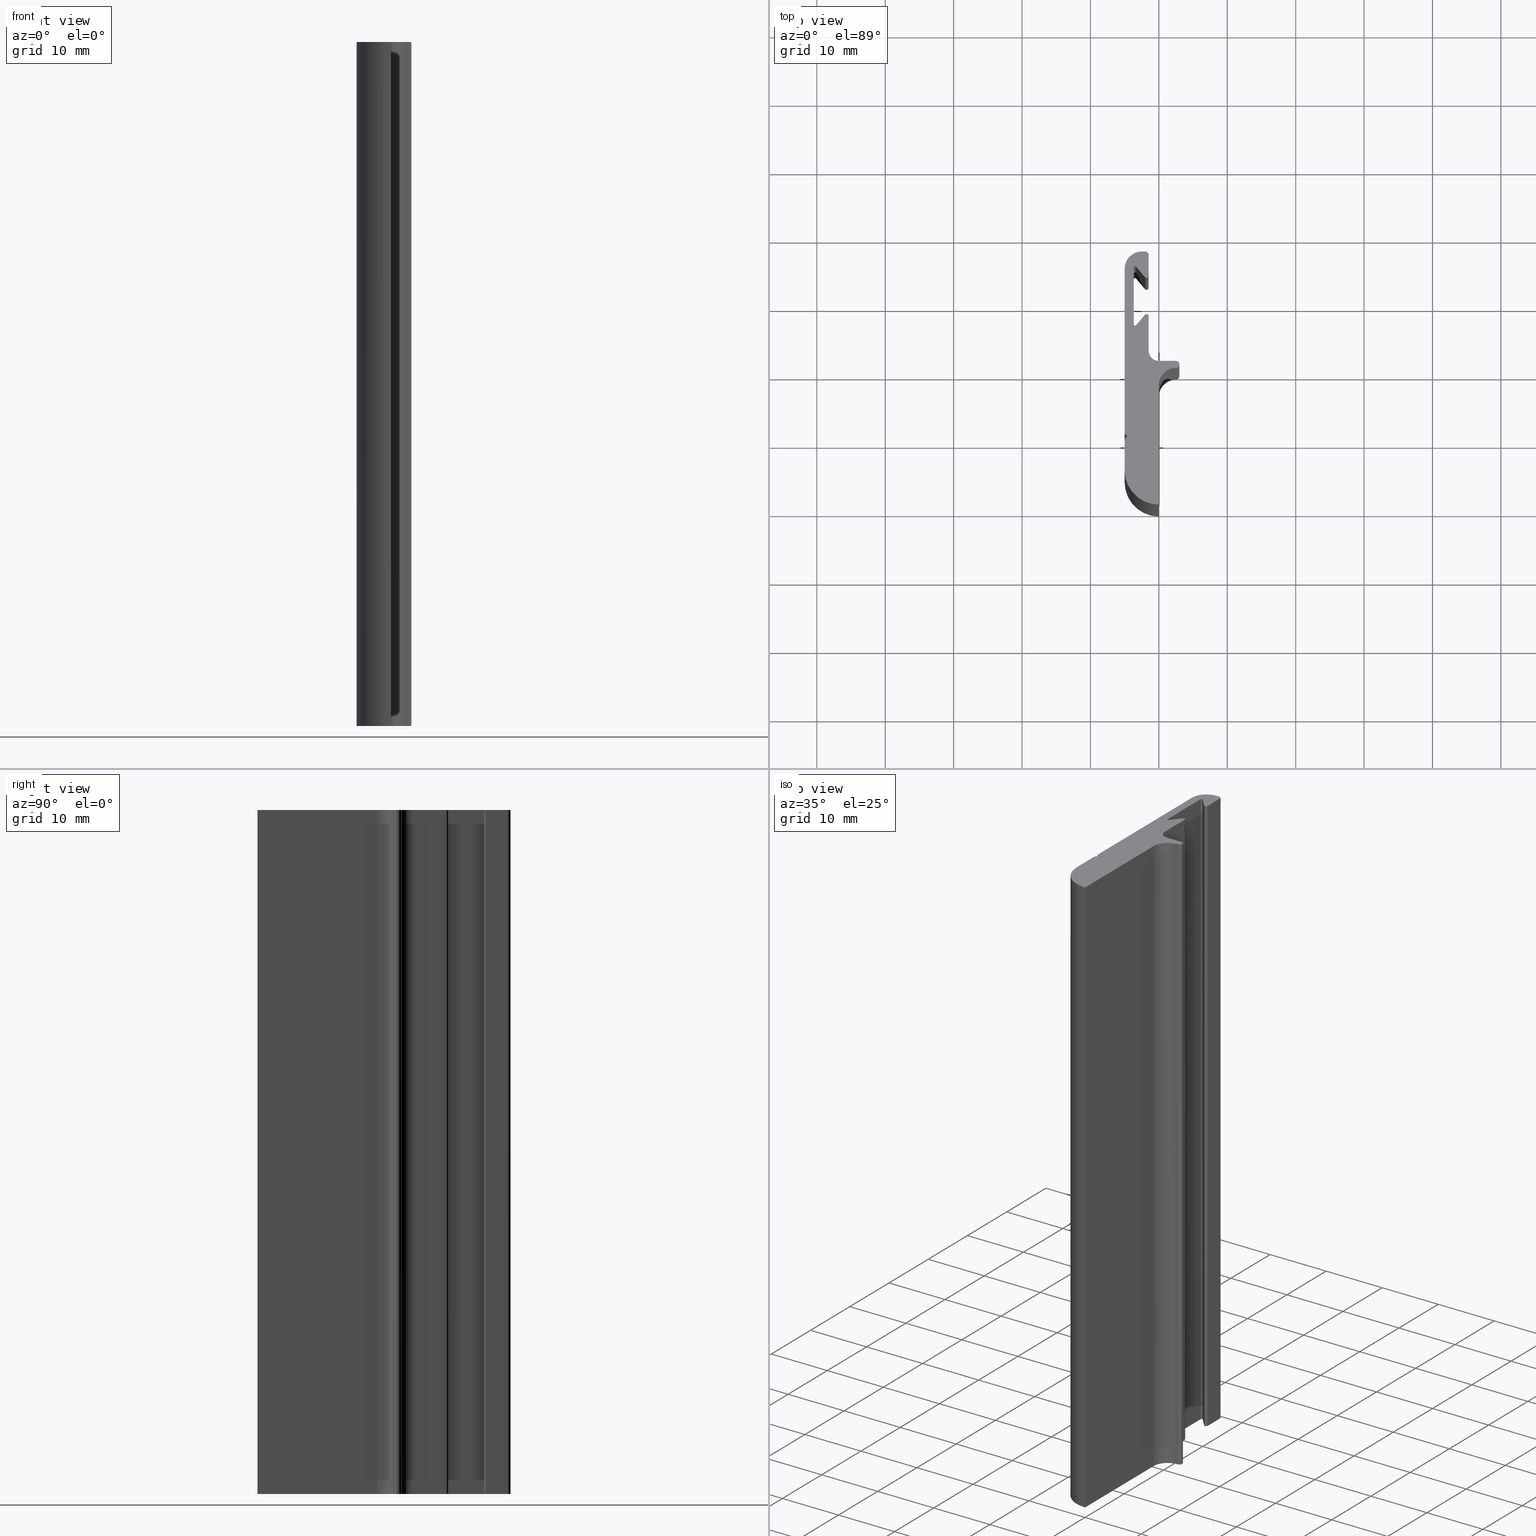
[diagram: canonical four-view strip — front | top / right | iso, engineering-drawing reading convention]
A machine part, canonical four-view strip (front | top / right | iso — engineering-drawing reading convention). The complete STEP part file that produces these views, byte-faithful:
ISO-10303-21;
HEADER;
/****************************************************************
 * Generated by software with PDE/Lib inside                    *
 * PDElib Version v4.4, created Mon 02/23/2004                  *
 * International Technegroup Inc. (www.iti-oh.com)              *
 ****************************************************************/
FILE_DESCRIPTION(('STEP AP203'),'2;1');
FILE_NAME('XB27105.stp','2011-03-21T16:33:50',(''),(''),'2009.3.110','THINKDESIGN','');
FILE_SCHEMA(('CONFIG_CONTROL_DESIGN'));
ENDSEC;
DATA;
#2=CARTESIAN_POINT('',(2.500000000000000,17.499999999998863,0.0));
#3=DIRECTION('',(0.0,0.0,-1.0));
#4=DIRECTION('',(-1.0,1.010643E-015,0.0));
#5=AXIS2_PLACEMENT_3D('',#2,#3,#4);
#6=CYLINDRICAL_SURFACE('',#5,2.500000000000000);
#7=CARTESIAN_POINT('',(0.0,17.499999999998863,0.0));
#8=VERTEX_POINT('',#7);
#9=CARTESIAN_POINT('',(2.500000000000000,20.0,0.0));
#10=VERTEX_POINT('',#9);
#11=CARTESIAN_POINT('',(2.500000000000000,17.499999999998863,0.0));
#12=DIRECTION('',(0.0,0.0,-1.0));
#13=DIRECTION('',(1.0,0.0,0.0));
#14=AXIS2_PLACEMENT_3D('',#11,#12,#13);
#15=CIRCLE('',#14,2.500000000000000);
#16=EDGE_CURVE('',#8,#10,#15,.T.);
#17=ORIENTED_EDGE('',*,*,#16,.T.);
#18=CARTESIAN_POINT('',(2.500000000000000,20.0,100.0));
#19=VERTEX_POINT('',#18);
#20=CARTESIAN_POINT('',(2.500000000000000,20.0,0.0));
#21=DIRECTION('',(0.0,0.0,1.0));
#22=VECTOR('',#21,100.0);
#23=LINE('',#20,#22);
#24=EDGE_CURVE('',#10,#19,#23,.T.);
#25=ORIENTED_EDGE('',*,*,#24,.T.);
#26=CARTESIAN_POINT('',(0.0,17.499999999998863,100.0));
#27=VERTEX_POINT('',#26);
#28=CARTESIAN_POINT('',(2.500000000000000,17.499999999998863,100.0));
#29=DIRECTION('',(0.0,0.0,-1.0));
#30=DIRECTION('',(1.0,0.0,0.0));
#31=AXIS2_PLACEMENT_3D('',#28,#29,#30);
#32=CIRCLE('',#31,2.500000000000000);
#33=EDGE_CURVE('',#27,#19,#32,.T.);
#34=ORIENTED_EDGE('',*,*,#33,.F.);
#35=CARTESIAN_POINT('',(0.0,17.499999999998863,0.0));
#36=DIRECTION('',(0.0,0.0,1.0));
#37=VECTOR('',#36,100.0);
#38=LINE('',#35,#37);
#39=EDGE_CURVE('',#8,#27,#38,.T.);
#40=ORIENTED_EDGE('',*,*,#39,.F.);
#41=EDGE_LOOP('',(#17,#25,#34,#40));
#42=FACE_OUTER_BOUND('',#41,.T.);
#43=ADVANCED_FACE('',(#42),#6,.F.);
#44=CARTESIAN_POINT('',(2.500000000000000,20.500000000000000,0.0));
#45=DIRECTION('',(0.0,0.0,1.0));
#46=DIRECTION('',(5.053215E-016,-1.0,0.0));
#47=AXIS2_PLACEMENT_3D('',#44,#45,#46);
#48=CYLINDRICAL_SURFACE('',#47,0.500000000000012);
#49=CARTESIAN_POINT('',(2.500000000000000,20.999999999998863,0.0));
#50=VERTEX_POINT('',#49);
#51=CARTESIAN_POINT('',(2.500000000000000,20.500000000000000,0.0));
#52=DIRECTION('',(0.0,0.0,1.0));
#53=DIRECTION('',(1.0,0.0,0.0));
#54=AXIS2_PLACEMENT_3D('',#51,#52,#53);
#55=CIRCLE('',#54,0.500000000000012);
#56=EDGE_CURVE('',#10,#50,#55,.T.);
#57=ORIENTED_EDGE('',*,*,#56,.T.);
#58=CARTESIAN_POINT('',(2.500000000000000,20.999999999998863,100.0));
#59=VERTEX_POINT('',#58);
#60=CARTESIAN_POINT('',(2.500000000000000,20.999999999998863,0.0));
#61=DIRECTION('',(0.0,0.0,1.0));
#62=VECTOR('',#61,100.0);
#63=LINE('',#60,#62);
#64=EDGE_CURVE('',#50,#59,#63,.T.);
#65=ORIENTED_EDGE('',*,*,#64,.T.);
#66=CARTESIAN_POINT('',(2.500000000000000,20.500000000000000,100.0));
#67=DIRECTION('',(0.0,0.0,1.0));
#68=DIRECTION('',(1.0,0.0,0.0));
#69=AXIS2_PLACEMENT_3D('',#66,#67,#68);
#70=CIRCLE('',#69,0.500000000000012);
#71=EDGE_CURVE('',#19,#59,#70,.T.);
#72=ORIENTED_EDGE('',*,*,#71,.F.);
#73=ORIENTED_EDGE('',*,*,#24,.F.);
#74=EDGE_LOOP('',(#57,#65,#72,#73));
#75=FACE_OUTER_BOUND('',#74,.T.);
#76=ADVANCED_FACE('',(#75),#48,.T.);
#77=CARTESIAN_POINT('',(2.500000000000000,20.999999999998863,0.0));
#78=DIRECTION('',(0.0,1.0,0.0));
#79=DIRECTION('',(-1.0,0.0,0.0));
#80=AXIS2_PLACEMENT_3D('',#77,#78,#79);
#81=PLANE('',#80);
#82=CARTESIAN_POINT('',(0.0,20.999999999998863,0.0));
#83=VERTEX_POINT('',#82);
#84=CARTESIAN_POINT('',(2.500000000000000,20.999999999998863,0.0));
#85=DIRECTION('',(-1.0,0.0,0.0));
#86=VECTOR('',#85,2.500000000000000);
#87=LINE('',#84,#86);
#88=EDGE_CURVE('',#50,#83,#87,.T.);
#89=ORIENTED_EDGE('',*,*,#88,.T.);
#90=CARTESIAN_POINT('',(0.0,20.999999999998863,100.0));
#91=VERTEX_POINT('',#90);
#92=CARTESIAN_POINT('',(0.0,20.999999999998863,0.0));
#93=DIRECTION('',(0.0,0.0,1.0));
#94=VECTOR('',#93,100.0);
#95=LINE('',#92,#94);
#96=EDGE_CURVE('',#83,#91,#95,.T.);
#97=ORIENTED_EDGE('',*,*,#96,.T.);
#98=CARTESIAN_POINT('',(2.500000000000000,20.999999999998863,100.0));
#99=DIRECTION('',(-1.0,0.0,0.0));
#100=VECTOR('',#99,2.500000000000000);
#101=LINE('',#98,#100);
#102=EDGE_CURVE('',#59,#91,#101,.T.);
#103=ORIENTED_EDGE('',*,*,#102,.F.);
#104=ORIENTED_EDGE('',*,*,#64,.F.);
#105=EDGE_LOOP('',(#89,#97,#103,#104));
#106=FACE_OUTER_BOUND('',#105,.T.);
#107=ADVANCED_FACE('',(#106),#81,.T.);
#108=CARTESIAN_POINT('',(0.0,22.499999999998863,0.0));
#109=DIRECTION('',(0.0,0.0,-1.0));
#110=DIRECTION('',(-1.960054E-015,-1.0,0.0));
#111=AXIS2_PLACEMENT_3D('',#108,#109,#110);
#112=CYLINDRICAL_SURFACE('',#111,1.500000000000000);
#113=CARTESIAN_POINT('',(-1.500000000000000,22.499999999998863,0.0));
#114=VERTEX_POINT('',#113);
#115=CARTESIAN_POINT('',(0.0,22.499999999998863,0.0));
#116=DIRECTION('',(0.0,0.0,-1.0));
#117=DIRECTION('',(1.0,0.0,0.0));
#118=AXIS2_PLACEMENT_3D('',#115,#116,#117);
#119=CIRCLE('',#118,1.500000000000000);
#120=EDGE_CURVE('',#83,#114,#119,.T.);
#121=ORIENTED_EDGE('',*,*,#120,.T.);
#122=CARTESIAN_POINT('',(-1.500000000000000,22.499999999998863,100.0));
#123=VERTEX_POINT('',#122);
#124=CARTESIAN_POINT('',(-1.500000000000000,22.499999999998863,0.0));
#125=DIRECTION('',(0.0,0.0,1.0));
#126=VECTOR('',#125,100.0);
#127=LINE('',#124,#126);
#128=EDGE_CURVE('',#114,#123,#127,.T.);
#129=ORIENTED_EDGE('',*,*,#128,.T.);
#130=CARTESIAN_POINT('',(0.0,22.499999999998863,100.0));
#131=DIRECTION('',(0.0,0.0,-1.0));
#132=DIRECTION('',(1.0,0.0,0.0));
#133=AXIS2_PLACEMENT_3D('',#130,#131,#132);
#134=CIRCLE('',#133,1.500000000000000);
#135=EDGE_CURVE('',#91,#123,#134,.T.);
#136=ORIENTED_EDGE('',*,*,#135,.F.);
#137=ORIENTED_EDGE('',*,*,#96,.F.);
#138=EDGE_LOOP('',(#121,#129,#136,#137));
#139=FACE_OUTER_BOUND('',#138,.T.);
#140=ADVANCED_FACE('',(#139),#112,.F.);
#141=CARTESIAN_POINT('',(-1.500000000000000,22.499999999998863,0.0));
#142=DIRECTION('',(1.0,0.0,0.0));
#143=DIRECTION('',(0.0,1.0,0.0));
#144=AXIS2_PLACEMENT_3D('',#141,#142,#143);
#145=PLANE('',#144);
#146=CARTESIAN_POINT('',(-1.500000000000000,27.570751159263864,0.0));
#147=VERTEX_POINT('',#146);
#148=CARTESIAN_POINT('',(-1.500000000000000,22.499999999998863,0.0));
#149=DIRECTION('',(0.0,1.0,0.0));
#150=VECTOR('',#149,5.070751159265001);
#151=LINE('',#148,#150);
#152=EDGE_CURVE('',#114,#147,#151,.T.);
#153=ORIENTED_EDGE('',*,*,#152,.T.);
#154=CARTESIAN_POINT('',(-1.500000000000000,27.570751159263864,100.0));
#155=VERTEX_POINT('',#154);
#156=CARTESIAN_POINT('',(-1.500000000000000,27.570751159263864,0.0));
#157=DIRECTION('',(0.0,0.0,1.0));
#158=VECTOR('',#157,100.0);
#159=LINE('',#156,#158);
#160=EDGE_CURVE('',#147,#155,#159,.T.);
#161=ORIENTED_EDGE('',*,*,#160,.T.);
#162=CARTESIAN_POINT('',(-1.500000000000000,22.499999999998863,100.0));
#163=DIRECTION('',(0.0,1.0,0.0));
#164=VECTOR('',#163,5.070751159265001);
#165=LINE('',#162,#164);
#166=EDGE_CURVE('',#123,#155,#165,.T.);
#167=ORIENTED_EDGE('',*,*,#166,.F.);
#168=ORIENTED_EDGE('',*,*,#128,.F.);
#169=EDGE_LOOP('',(#153,#161,#167,#168));
#170=FACE_OUTER_BOUND('',#169,.T.);
#171=ADVANCED_FACE('',(#170),#145,.T.);
#172=CARTESIAN_POINT('',(-1.799999700000001,27.570751159263864,0.0));
#173=DIRECTION('',(0.0,0.0,1.0));
#174=DIRECTION('',(1.0,0.0,0.0));
#175=AXIS2_PLACEMENT_3D('',#172,#173,#174);
#176=CYLINDRICAL_SURFACE('',#175,0.299999700000000);
#177=CARTESIAN_POINT('',(-2.029812803122354,27.763587249332886,0.0));
#178=VERTEX_POINT('',#177);
#179=CARTESIAN_POINT('',(-1.799999700000001,27.570751159263864,0.0));
#180=DIRECTION('',(0.0,0.0,1.0));
#181=DIRECTION('',(1.0,0.0,0.0));
#182=AXIS2_PLACEMENT_3D('',#179,#180,#181);
#183=CIRCLE('',#182,0.299999700000000);
#184=EDGE_CURVE('',#147,#178,#183,.T.);
#185=ORIENTED_EDGE('',*,*,#184,.T.);
#186=CARTESIAN_POINT('',(-2.029812803122354,27.763587249332886,100.0));
#187=VERTEX_POINT('',#186);
#188=CARTESIAN_POINT('',(-2.029812803122354,27.763587249332886,0.0));
#189=DIRECTION('',(0.0,0.0,1.0));
#190=VECTOR('',#189,100.0);
#191=LINE('',#188,#190);
#192=EDGE_CURVE('',#178,#187,#191,.T.);
#193=ORIENTED_EDGE('',*,*,#192,.T.);
#194=CARTESIAN_POINT('',(-1.799999700000001,27.570751159263864,100.0));
#195=DIRECTION('',(0.0,0.0,1.0));
#196=DIRECTION('',(1.0,0.0,0.0));
#197=AXIS2_PLACEMENT_3D('',#194,#195,#196);
#198=CIRCLE('',#197,0.299999700000000);
#199=EDGE_CURVE('',#155,#187,#198,.T.);
#200=ORIENTED_EDGE('',*,*,#199,.F.);
#201=ORIENTED_EDGE('',*,*,#160,.F.);
#202=EDGE_LOOP('',(#185,#193,#200,#201));
#203=FACE_OUTER_BOUND('',#202,.T.);
#204=ADVANCED_FACE('',(#203),#176,.T.);
#205=CARTESIAN_POINT('',(-2.029812803122354,27.763587249332886,0.0));
#206=DIRECTION('',(-0.766044443118849,0.642787609686693,0.0));
#207=DIRECTION('',(-0.642787609686693,-0.766044443118849,0.0));
#208=AXIS2_PLACEMENT_3D('',#205,#206,#207);
#209=PLANE('',#208);
#210=CARTESIAN_POINT('',(-3.320530720561976,26.225369534198308,0.0));
#211=VERTEX_POINT('',#210);
#212=CARTESIAN_POINT('',(-2.029812803122354,27.763587249332886,0.0));
#213=DIRECTION('',(-0.642787609686693,-0.766044443118849,0.0));
#214=VECTOR('',#213,2.008000617916169);
#215=LINE('',#212,#214);
#216=EDGE_CURVE('',#178,#211,#215,.T.);
#217=ORIENTED_EDGE('',*,*,#216,.T.);
#218=CARTESIAN_POINT('',(-3.320530720561976,26.225369534198308,100.0));
#219=VERTEX_POINT('',#218);
#220=CARTESIAN_POINT('',(-3.320530720561976,26.225369534198308,0.0));
#221=DIRECTION('',(0.0,0.0,1.0));
#222=VECTOR('',#221,100.0);
#223=LINE('',#220,#222);
#224=EDGE_CURVE('',#211,#219,#223,.T.);
#225=ORIENTED_EDGE('',*,*,#224,.T.);
#226=CARTESIAN_POINT('',(-2.029812803122354,27.763587249332886,100.0));
#227=DIRECTION('',(-0.642787609686693,-0.766044443118849,0.0));
#228=VECTOR('',#227,2.008000617916169);
#229=LINE('',#226,#228);
#230=EDGE_CURVE('',#187,#219,#229,.T.);
#231=ORIENTED_EDGE('',*,*,#230,.F.);
#232=ORIENTED_EDGE('',*,*,#192,.F.);
#233=EDGE_LOOP('',(#217,#225,#231,#232));
#234=FACE_OUTER_BOUND('',#233,.T.);
#235=ADVANCED_FACE('',(#234),#209,.T.);
#236=CARTESIAN_POINT('',(-3.473739455976954,26.353926927577959,0.0));
#237=DIRECTION('',(0.0,0.0,-1.0));
#238=DIRECTION('',(0.766044443119311,-0.642787609686142,0.0));
#239=AXIS2_PLACEMENT_3D('',#236,#237,#238);
#240=CYLINDRICAL_SURFACE('',#239,0.199999800000000);
#241=CARTESIAN_POINT('',(-3.673739255976955,26.353926927577959,0.0));
#242=VERTEX_POINT('',#241);
#243=CARTESIAN_POINT('',(-3.473739455976954,26.353926927577959,0.0));
#244=DIRECTION('',(0.0,0.0,-1.0));
#245=DIRECTION('',(1.0,0.0,0.0));
#246=AXIS2_PLACEMENT_3D('',#243,#244,#245);
#247=CIRCLE('',#246,0.199999800000000);
#248=EDGE_CURVE('',#211,#242,#247,.T.);
#249=ORIENTED_EDGE('',*,*,#248,.T.);
#250=CARTESIAN_POINT('',(-3.673739255976955,26.353926927577959,100.0));
#251=VERTEX_POINT('',#250);
#252=CARTESIAN_POINT('',(-3.673739255976955,26.353926927577959,0.0));
#253=DIRECTION('',(0.0,0.0,1.0));
#254=VECTOR('',#253,100.0);
#255=LINE('',#252,#254);
#256=EDGE_CURVE('',#242,#251,#255,.T.);
#257=ORIENTED_EDGE('',*,*,#256,.T.);
#258=CARTESIAN_POINT('',(-3.473739455976954,26.353926927577959,100.0));
#259=DIRECTION('',(0.0,0.0,-1.0));
#260=DIRECTION('',(1.0,0.0,0.0));
#261=AXIS2_PLACEMENT_3D('',#258,#259,#260);
#262=CIRCLE('',#261,0.199999800000000);
#263=EDGE_CURVE('',#219,#251,#262,.T.);
#264=ORIENTED_EDGE('',*,*,#263,.F.);
#265=ORIENTED_EDGE('',*,*,#224,.F.);
#266=EDGE_LOOP('',(#249,#257,#264,#265));
#267=FACE_OUTER_BOUND('',#266,.T.);
#268=ADVANCED_FACE('',(#267),#240,.F.);
#269=CARTESIAN_POINT('',(-3.673739255976955,26.353926927577959,0.0));
#270=DIRECTION('',(1.0,0.0,0.0));
#271=DIRECTION('',(0.0,1.0,0.0));
#272=AXIS2_PLACEMENT_3D('',#269,#270,#271);
#273=PLANE('',#272);
#274=CARTESIAN_POINT('',(-3.673739255976955,34.646086072419848,0.0));
#275=VERTEX_POINT('',#274);
#276=CARTESIAN_POINT('',(-3.673739255976955,26.353926927577959,0.0));
#277=DIRECTION('',(0.0,1.0,0.0));
#278=VECTOR('',#277,8.292159144841889);
#279=LINE('',#276,#278);
#280=EDGE_CURVE('',#242,#275,#279,.T.);
#281=ORIENTED_EDGE('',*,*,#280,.T.);
#282=CARTESIAN_POINT('',(-3.673739255976955,34.646086072419848,100.0));
#283=VERTEX_POINT('',#282);
#284=CARTESIAN_POINT('',(-3.673739255976955,34.646086072419848,0.0));
#285=DIRECTION('',(0.0,0.0,1.0));
#286=VECTOR('',#285,100.0);
#287=LINE('',#284,#286);
#288=EDGE_CURVE('',#275,#283,#287,.T.);
#289=ORIENTED_EDGE('',*,*,#288,.T.);
#290=CARTESIAN_POINT('',(-3.673739255976955,26.353926927577959,100.0));
#291=DIRECTION('',(0.0,1.0,0.0));
#292=VECTOR('',#291,8.292159144841889);
#293=LINE('',#290,#292);
#294=EDGE_CURVE('',#251,#283,#293,.T.);
#295=ORIENTED_EDGE('',*,*,#294,.F.);
#296=ORIENTED_EDGE('',*,*,#256,.F.);
#297=EDGE_LOOP('',(#281,#289,#295,#296));
#298=FACE_OUTER_BOUND('',#297,.T.);
#299=ADVANCED_FACE('',(#298),#273,.T.);
#300=CARTESIAN_POINT('',(-3.473739455976954,34.646086072419848,0.0));
#301=DIRECTION('',(0.0,0.0,-1.0));
#302=DIRECTION('',(-1.0,1.010643E-015,0.0));
#303=AXIS2_PLACEMENT_3D('',#300,#301,#302);
#304=CYLINDRICAL_SURFACE('',#303,0.199999800000000);
#305=CARTESIAN_POINT('',(-3.320530720562090,34.774643465799954,0.0));
#306=VERTEX_POINT('',#305);
#307=CARTESIAN_POINT('',(-3.473739455976954,34.646086072419848,0.0));
#308=DIRECTION('',(0.0,0.0,-1.0));
#309=DIRECTION('',(1.0,0.0,0.0));
#310=AXIS2_PLACEMENT_3D('',#307,#308,#309);
#311=CIRCLE('',#310,0.199999800000000);
#312=EDGE_CURVE('',#275,#306,#311,.T.);
#313=ORIENTED_EDGE('',*,*,#312,.T.);
#314=CARTESIAN_POINT('',(-3.320530720562090,34.774643465799954,100.0));
#315=VERTEX_POINT('',#314);
#316=CARTESIAN_POINT('',(-3.320530720562090,34.774643465799954,0.0));
#317=DIRECTION('',(0.0,0.0,1.0));
#318=VECTOR('',#317,100.0);
#319=LINE('',#316,#318);
#320=EDGE_CURVE('',#306,#315,#319,.T.);
#321=ORIENTED_EDGE('',*,*,#320,.T.);
#322=CARTESIAN_POINT('',(-3.473739455976954,34.646086072419848,100.0));
#323=DIRECTION('',(0.0,0.0,-1.0));
#324=DIRECTION('',(1.0,0.0,0.0));
#325=AXIS2_PLACEMENT_3D('',#322,#323,#324);
#326=CIRCLE('',#325,0.199999800000000);
#327=EDGE_CURVE('',#283,#315,#326,.T.);
#328=ORIENTED_EDGE('',*,*,#327,.F.);
#329=ORIENTED_EDGE('',*,*,#288,.F.);
#330=EDGE_LOOP('',(#313,#321,#328,#329));
#331=FACE_OUTER_BOUND('',#330,.T.);
#332=ADVANCED_FACE('',(#331),#304,.F.);
#333=CARTESIAN_POINT('',(-3.320530720562090,34.774643465799954,0.0));
#334=DIRECTION('',(-0.766044443119083,-0.642787609686414,0.0));
#335=DIRECTION('',(0.642787609686414,-0.766044443119083,0.0));
#336=AXIS2_PLACEMENT_3D('',#333,#334,#335);
#337=PLANE('',#336);
#338=CARTESIAN_POINT('',(-2.029812803122468,33.236425750665376,0.0));
#339=VERTEX_POINT('',#338);
#340=CARTESIAN_POINT('',(-3.320530720562090,34.774643465799954,0.0));
#341=DIRECTION('',(0.642787609686414,-0.766044443119083,0.0));
#342=VECTOR('',#341,2.008000617917039);
#343=LINE('',#340,#342);
#344=EDGE_CURVE('',#306,#339,#343,.T.);
#345=ORIENTED_EDGE('',*,*,#344,.T.);
#346=CARTESIAN_POINT('',(-2.029812803122468,33.236425750665376,100.0));
#347=VERTEX_POINT('',#346);
#348=CARTESIAN_POINT('',(-2.029812803122468,33.236425750665376,0.0));
#349=DIRECTION('',(0.0,0.0,1.0));
#350=VECTOR('',#349,100.0);
#351=LINE('',#348,#350);
#352=EDGE_CURVE('',#339,#347,#351,.T.);
#353=ORIENTED_EDGE('',*,*,#352,.T.);
#354=CARTESIAN_POINT('',(-3.320530720562090,34.774643465799954,100.0));
#355=DIRECTION('',(0.642787609686414,-0.766044443119083,0.0));
#356=VECTOR('',#355,2.008000617917039);
#357=LINE('',#354,#356);
#358=EDGE_CURVE('',#315,#347,#357,.T.);
#359=ORIENTED_EDGE('',*,*,#358,.F.);
#360=ORIENTED_EDGE('',*,*,#320,.F.);
#361=EDGE_LOOP('',(#345,#353,#359,#360));
#362=FACE_OUTER_BOUND('',#361,.T.);
#363=ADVANCED_FACE('',(#362),#337,.T.);
#364=CARTESIAN_POINT('',(-1.799999700000001,33.429261840734853,0.0));
#365=DIRECTION('',(0.0,0.0,1.0));
#366=DIRECTION('',(-0.766044443119313,-0.642787609686140,0.0));
#367=AXIS2_PLACEMENT_3D('',#364,#365,#366);
#368=CYLINDRICAL_SURFACE('',#367,0.299999700000000);
#369=CARTESIAN_POINT('',(-1.500000000000000,33.429261840734853,0.0));
#370=VERTEX_POINT('',#369);
#371=CARTESIAN_POINT('',(-1.799999700000001,33.429261840734853,0.0));
#372=DIRECTION('',(0.0,0.0,1.0));
#373=DIRECTION('',(1.0,0.0,0.0));
#374=AXIS2_PLACEMENT_3D('',#371,#372,#373);
#375=CIRCLE('',#374,0.299999700000000);
#376=EDGE_CURVE('',#339,#370,#375,.T.);
#377=ORIENTED_EDGE('',*,*,#376,.T.);
#378=CARTESIAN_POINT('',(-1.500000000000000,33.429261840734853,100.0));
#379=VERTEX_POINT('',#378);
#380=CARTESIAN_POINT('',(-1.500000000000000,33.429261840734853,0.0));
#381=DIRECTION('',(0.0,0.0,1.0));
#382=VECTOR('',#381,100.0);
#383=LINE('',#380,#382);
#384=EDGE_CURVE('',#370,#379,#383,.T.);
#385=ORIENTED_EDGE('',*,*,#384,.T.);
#386=CARTESIAN_POINT('',(-1.799999700000001,33.429261840734853,100.0));
#387=DIRECTION('',(0.0,0.0,1.0));
#388=DIRECTION('',(1.0,0.0,0.0));
#389=AXIS2_PLACEMENT_3D('',#386,#387,#388);
#390=CIRCLE('',#389,0.299999700000000);
#391=EDGE_CURVE('',#347,#379,#390,.T.);
#392=ORIENTED_EDGE('',*,*,#391,.F.);
#393=ORIENTED_EDGE('',*,*,#352,.F.);
#394=EDGE_LOOP('',(#377,#385,#392,#393));
#395=FACE_OUTER_BOUND('',#394,.T.);
#396=ADVANCED_FACE('',(#395),#368,.T.);
#397=CARTESIAN_POINT('',(-1.500000000000000,33.429261840734853,0.0));
#398=DIRECTION('',(1.0,0.0,0.0));
#399=DIRECTION('',(0.0,1.0,0.0));
#400=AXIS2_PLACEMENT_3D('',#397,#398,#399);
#401=PLANE('',#400);
#402=CARTESIAN_POINT('',(-1.500000000000000,36.500000499999032,0.0));
#403=VERTEX_POINT('',#402);
#404=CARTESIAN_POINT('',(-1.500000000000000,33.429261840734853,0.0));
#405=DIRECTION('',(0.0,1.0,0.0));
#406=VECTOR('',#405,3.070738659264180);
#407=LINE('',#404,#406);
#408=EDGE_CURVE('',#370,#403,#407,.T.);
#409=ORIENTED_EDGE('',*,*,#408,.T.);
#410=CARTESIAN_POINT('',(-1.500000000000000,36.500000499999032,100.0));
#411=VERTEX_POINT('',#410);
#412=CARTESIAN_POINT('',(-1.500000000000000,36.500000499999032,0.0));
#413=DIRECTION('',(0.0,0.0,1.0));
#414=VECTOR('',#413,100.0);
#415=LINE('',#412,#414);
#416=EDGE_CURVE('',#403,#411,#415,.T.);
#417=ORIENTED_EDGE('',*,*,#416,.T.);
#418=CARTESIAN_POINT('',(-1.500000000000000,33.429261840734853,100.0));
#419=DIRECTION('',(0.0,1.0,0.0));
#420=VECTOR('',#419,3.070738659264180);
#421=LINE('',#418,#420);
#422=EDGE_CURVE('',#379,#411,#421,.T.);
#423=ORIENTED_EDGE('',*,*,#422,.F.);
#424=ORIENTED_EDGE('',*,*,#384,.F.);
#425=EDGE_LOOP('',(#409,#417,#423,#424));
#426=FACE_OUTER_BOUND('',#425,.T.);
#427=ADVANCED_FACE('',(#426),#401,.T.);
#428=CARTESIAN_POINT('',(-1.999999500000001,36.500000499999032,0.0));
#429=DIRECTION('',(0.0,0.0,1.0));
#430=DIRECTION('',(1.0,0.0,0.0));
#431=AXIS2_PLACEMENT_3D('',#428,#429,#430);
#432=CYLINDRICAL_SURFACE('',#431,0.499999500000000);
#433=CARTESIAN_POINT('',(-1.999999500000001,36.999999999998863,0.0));
#434=VERTEX_POINT('',#433);
#435=CARTESIAN_POINT('',(-1.999999500000001,36.500000499999032,0.0));
#436=DIRECTION('',(0.0,0.0,1.0));
#437=DIRECTION('',(1.0,0.0,0.0));
#438=AXIS2_PLACEMENT_3D('',#435,#436,#437);
#439=CIRCLE('',#438,0.499999500000000);
#440=EDGE_CURVE('',#403,#434,#439,.T.);
#441=ORIENTED_EDGE('',*,*,#440,.T.);
#442=CARTESIAN_POINT('',(-1.999999500000001,36.999999999998863,100.0));
#443=VERTEX_POINT('',#442);
#444=CARTESIAN_POINT('',(-1.999999500000001,36.999999999998863,0.0));
#445=DIRECTION('',(0.0,0.0,1.0));
#446=VECTOR('',#445,100.0);
#447=LINE('',#444,#446);
#448=EDGE_CURVE('',#434,#443,#447,.T.);
#449=ORIENTED_EDGE('',*,*,#448,.T.);
#450=CARTESIAN_POINT('',(-1.999999500000001,36.500000499999032,100.0));
#451=DIRECTION('',(0.0,0.0,1.0));
#452=DIRECTION('',(1.0,0.0,0.0));
#453=AXIS2_PLACEMENT_3D('',#450,#451,#452);
#454=CIRCLE('',#453,0.499999500000000);
#455=EDGE_CURVE('',#411,#443,#454,.T.);
#456=ORIENTED_EDGE('',*,*,#455,.F.);
#457=ORIENTED_EDGE('',*,*,#416,.F.);
#458=EDGE_LOOP('',(#441,#449,#456,#457));
#459=FACE_OUTER_BOUND('',#458,.T.);
#460=ADVANCED_FACE('',(#459),#432,.T.);
#461=CARTESIAN_POINT('',(-1.999999500000001,36.999999999998863,0.0));
#462=DIRECTION('',(0.0,1.0,0.0));
#463=DIRECTION('',(-1.0,0.0,0.0));
#464=AXIS2_PLACEMENT_3D('',#461,#462,#463);
#465=PLANE('',#464);
#466=CARTESIAN_POINT('',(-2.499998999999946,36.999999999999091,0.0));
#467=VERTEX_POINT('',#466);
#468=CARTESIAN_POINT('',(-1.999999500000001,36.999999999998863,0.0));
#469=DIRECTION('',(-1.0,0.0,0.0));
#470=VECTOR('',#469,0.499999499999944);
#471=LINE('',#468,#470);
#472=EDGE_CURVE('',#434,#467,#471,.T.);
#473=ORIENTED_EDGE('',*,*,#472,.T.);
#474=CARTESIAN_POINT('',(-2.499998999999946,36.999999999999091,100.0));
#475=VERTEX_POINT('',#474);
#476=CARTESIAN_POINT('',(-2.499998999999946,36.999999999999091,0.0));
#477=DIRECTION('',(0.0,0.0,1.0));
#478=VECTOR('',#477,100.0);
#479=LINE('',#476,#478);
#480=EDGE_CURVE('',#467,#475,#479,.T.);
#481=ORIENTED_EDGE('',*,*,#480,.T.);
#482=CARTESIAN_POINT('',(-1.999999500000001,36.999999999998863,100.0));
#483=DIRECTION('',(-1.0,0.0,0.0));
#484=VECTOR('',#483,0.499999499999944);
#485=LINE('',#482,#484);
#486=EDGE_CURVE('',#443,#475,#485,.T.);
#487=ORIENTED_EDGE('',*,*,#486,.F.);
#488=ORIENTED_EDGE('',*,*,#448,.F.);
#489=EDGE_LOOP('',(#473,#481,#487,#488));
#490=FACE_OUTER_BOUND('',#489,.T.);
#491=ADVANCED_FACE('',(#490),#465,.T.);
#492=CARTESIAN_POINT('',(-2.499998999999946,34.500002499999027,0.0));
#493=DIRECTION('',(0.0,0.0,1.0));
#494=DIRECTION('',(1.0,0.0,0.0));
#495=AXIS2_PLACEMENT_3D('',#492,#493,#494);
#496=CYLINDRICAL_SURFACE('',#495,2.499997500000000);
#497=CARTESIAN_POINT('',(-4.999996499999952,34.500002499999027,0.0));
#498=VERTEX_POINT('',#497);
#499=CARTESIAN_POINT('',(-2.499998999999946,34.500002499999027,0.0));
#500=DIRECTION('',(0.0,0.0,1.0));
#501=DIRECTION('',(1.0,0.0,0.0));
#502=AXIS2_PLACEMENT_3D('',#499,#500,#501);
#503=CIRCLE('',#502,2.499997500000000);
#504=EDGE_CURVE('',#467,#498,#503,.T.);
#505=ORIENTED_EDGE('',*,*,#504,.T.);
#506=CARTESIAN_POINT('',(-4.999996499999952,34.500002499999027,100.0));
#507=VERTEX_POINT('',#506);
#508=CARTESIAN_POINT('',(-4.999996499999952,34.500002499999027,0.0));
#509=DIRECTION('',(0.0,0.0,1.0));
#510=VECTOR('',#509,100.0);
#511=LINE('',#508,#510);
#512=EDGE_CURVE('',#498,#507,#511,.T.);
#513=ORIENTED_EDGE('',*,*,#512,.T.);
#514=CARTESIAN_POINT('',(-2.499998999999946,34.500002499999027,100.0));
#515=DIRECTION('',(0.0,0.0,1.0));
#516=DIRECTION('',(1.0,0.0,0.0));
#517=AXIS2_PLACEMENT_3D('',#514,#515,#516);
#518=CIRCLE('',#517,2.499997500000000);
#519=EDGE_CURVE('',#475,#507,#518,.T.);
#520=ORIENTED_EDGE('',*,*,#519,.F.);
#521=ORIENTED_EDGE('',*,*,#480,.F.);
#522=EDGE_LOOP('',(#505,#513,#520,#521));
#523=FACE_OUTER_BOUND('',#522,.T.);
#524=ADVANCED_FACE('',(#523),#496,.T.);
#525=CARTESIAN_POINT('',(-4.999996499999952,34.500002499999027,0.0));
#526=DIRECTION('',(-1.0,0.0,0.0));
#527=DIRECTION('',(0.0,-1.0,0.0));
#528=AXIS2_PLACEMENT_3D('',#525,#526,#527);
#529=PLANE('',#528);
#530=CARTESIAN_POINT('',(-4.999996499999952,10.353553390592879,0.0));
#531=VERTEX_POINT('',#530);
#532=CARTESIAN_POINT('',(-4.999996499999952,34.500002499999027,0.0));
#533=DIRECTION('',(0.0,-1.0,0.0));
#534=VECTOR('',#533,24.146449109406149);
#535=LINE('',#532,#534);
#536=EDGE_CURVE('',#498,#531,#535,.T.);
#537=ORIENTED_EDGE('',*,*,#536,.T.);
#538=CARTESIAN_POINT('',(-4.999996499999952,10.353553390592879,100.0));
#539=VERTEX_POINT('',#538);
#540=CARTESIAN_POINT('',(-4.999996499999952,10.353553390592879,0.0));
#541=DIRECTION('',(0.0,0.0,1.0));
#542=VECTOR('',#541,100.0);
#543=LINE('',#540,#542);
#544=EDGE_CURVE('',#531,#539,#543,.T.);
#545=ORIENTED_EDGE('',*,*,#544,.T.);
#546=CARTESIAN_POINT('',(-4.999996499999952,34.500002499999027,100.0));
#547=DIRECTION('',(0.0,-1.0,0.0));
#548=VECTOR('',#547,24.146449109406149);
#549=LINE('',#546,#548);
#550=EDGE_CURVE('',#507,#539,#549,.T.);
#551=ORIENTED_EDGE('',*,*,#550,.F.);
#552=ORIENTED_EDGE('',*,*,#512,.F.);
#553=EDGE_LOOP('',(#537,#545,#551,#552));
#554=FACE_OUTER_BOUND('',#553,.T.);
#555=ADVANCED_FACE('',(#554),#529,.T.);
#556=CARTESIAN_POINT('',(-4.999996499999952,10.353553390592879,0.0));
#557=DIRECTION('',(-0.707106781187400,-0.707106781185695,0.0));
#558=DIRECTION('',(0.707106781185695,-0.707106781187400,0.0));
#559=AXIS2_PLACEMENT_3D('',#556,#557,#558);
#560=PLANE('',#559);
#561=CARTESIAN_POINT('',(-4.646443109406789,9.999999999998863,0.0));
#562=VERTEX_POINT('',#561);
#563=CARTESIAN_POINT('',(-4.999996499999952,10.353553390592879,0.0));
#564=DIRECTION('',(0.707106781185695,-0.707106781187400,0.0));
#565=VECTOR('',#564,0.500000000000446);
#566=LINE('',#563,#565);
#567=EDGE_CURVE('',#531,#562,#566,.T.);
#568=ORIENTED_EDGE('',*,*,#567,.T.);
#569=CARTESIAN_POINT('',(-4.646443109406789,9.999999999998863,100.0));
#570=VERTEX_POINT('',#569);
#571=CARTESIAN_POINT('',(-4.646443109406789,9.999999999998863,0.0));
#572=DIRECTION('',(0.0,0.0,1.0));
#573=VECTOR('',#572,100.0);
#574=LINE('',#571,#573);
#575=EDGE_CURVE('',#562,#570,#574,.T.);
#576=ORIENTED_EDGE('',*,*,#575,.T.);
#577=CARTESIAN_POINT('',(-4.999996499999952,10.353553390592879,100.0));
#578=DIRECTION('',(0.707106781185695,-0.707106781187400,0.0));
#579=VECTOR('',#578,0.500000000000446);
#580=LINE('',#577,#579);
#581=EDGE_CURVE('',#539,#570,#580,.T.);
#582=ORIENTED_EDGE('',*,*,#581,.F.);
#583=ORIENTED_EDGE('',*,*,#544,.F.);
#584=EDGE_LOOP('',(#568,#576,#582,#583));
#585=FACE_OUTER_BOUND('',#584,.T.);
#586=ADVANCED_FACE('',(#585),#560,.T.);
#587=CARTESIAN_POINT('',(-4.646443109406789,9.999999999998863,0.0));
#588=DIRECTION('',(-0.780800759755823,0.624780100167035,0.0));
#589=DIRECTION('',(-0.624780100167035,-0.780800759755823,0.0));
#590=AXIS2_PLACEMENT_3D('',#587,#588,#589);
#591=PLANE('',#590);
#592=CARTESIAN_POINT('',(-4.999996499999952,9.558156932469046,0.0));
#593=VERTEX_POINT('',#592);
#594=CARTESIAN_POINT('',(-4.646443109406789,9.999999999998863,0.0));
#595=DIRECTION('',(-0.624780100167035,-0.780800759755823,0.0));
#596=VECTOR('',#595,0.565884525609315);
#597=LINE('',#594,#596);
#598=EDGE_CURVE('',#562,#593,#597,.T.);
#599=ORIENTED_EDGE('',*,*,#598,.T.);
#600=CARTESIAN_POINT('',(-4.999996499999952,9.558156932469046,100.0));
#601=VERTEX_POINT('',#600);
#602=CARTESIAN_POINT('',(-4.999996499999952,9.558156932469046,0.0));
#603=DIRECTION('',(0.0,0.0,1.0));
#604=VECTOR('',#603,100.0);
#605=LINE('',#602,#604);
#606=EDGE_CURVE('',#593,#601,#605,.T.);
#607=ORIENTED_EDGE('',*,*,#606,.T.);
#608=CARTESIAN_POINT('',(-4.646443109406789,9.999999999998863,100.0));
#609=DIRECTION('',(-0.624780100167035,-0.780800759755823,0.0));
#610=VECTOR('',#609,0.565884525609315);
#611=LINE('',#608,#610);
#612=EDGE_CURVE('',#570,#601,#611,.T.);
#613=ORIENTED_EDGE('',*,*,#612,.F.);
#614=ORIENTED_EDGE('',*,*,#575,.F.);
#615=EDGE_LOOP('',(#599,#607,#613,#614));
#616=FACE_OUTER_BOUND('',#615,.T.);
#617=ADVANCED_FACE('',(#616),#591,.T.);
#618=CARTESIAN_POINT('',(-4.999996499999952,9.558156932469046,0.0));
#619=DIRECTION('',(-1.0,0.0,0.0));
#620=DIRECTION('',(0.0,-1.0,0.0));
#621=AXIS2_PLACEMENT_3D('',#618,#619,#620);
#622=PLANE('',#621);
#623=CARTESIAN_POINT('',(-4.999996499999952,4.999999999998863,0.0));
#624=VERTEX_POINT('',#623);
#625=CARTESIAN_POINT('',(-4.999996499999952,9.558156932469046,0.0));
#626=DIRECTION('',(0.0,-1.0,0.0));
#627=VECTOR('',#626,4.558156932470183);
#628=LINE('',#625,#627);
#629=EDGE_CURVE('',#593,#624,#628,.T.);
#630=ORIENTED_EDGE('',*,*,#629,.T.);
#631=CARTESIAN_POINT('',(-4.999996499999952,4.999999999998863,100.0));
#632=VERTEX_POINT('',#631);
#633=CARTESIAN_POINT('',(-4.999996499999952,4.999999999998863,0.0));
#634=DIRECTION('',(0.0,0.0,1.0));
#635=VECTOR('',#634,100.0);
#636=LINE('',#633,#635);
#637=EDGE_CURVE('',#624,#632,#636,.T.);
#638=ORIENTED_EDGE('',*,*,#637,.T.);
#639=CARTESIAN_POINT('',(-4.999996499999952,9.558156932469046,100.0));
#640=DIRECTION('',(0.0,-1.0,0.0));
#641=VECTOR('',#640,4.558156932470183);
#642=LINE('',#639,#641);
#643=EDGE_CURVE('',#601,#632,#642,.T.);
#644=ORIENTED_EDGE('',*,*,#643,.F.);
#645=ORIENTED_EDGE('',*,*,#606,.F.);
#646=EDGE_LOOP('',(#630,#638,#644,#645));
#647=FACE_OUTER_BOUND('',#646,.T.);
#648=ADVANCED_FACE('',(#647),#622,.T.);
#649=CARTESIAN_POINT('',(0.000003500000048,4.999999999998863,0.0));
#650=DIRECTION('',(0.0,0.0,1.0));
#651=DIRECTION('',(-1.0,0.0,0.0));
#652=AXIS2_PLACEMENT_3D('',#649,#650,#651);
#653=CYLINDRICAL_SURFACE('',#652,5.0);
#654=CARTESIAN_POINT('',(0.0,0.0,0.0));
#655=VERTEX_POINT('',#654);
#656=CARTESIAN_POINT('',(0.000003500000048,4.999999999998863,0.0));
#657=DIRECTION('',(0.0,0.0,1.0));
#658=DIRECTION('',(-1.0,0.0,0.0));
#659=AXIS2_PLACEMENT_3D('',#656,#657,#658);
#660=CIRCLE('',#659,5.0);
#661=EDGE_CURVE('',#624,#655,#660,.T.);
#662=ORIENTED_EDGE('',*,*,#661,.T.);
#663=CARTESIAN_POINT('',(0.0,0.0,100.0));
#664=VERTEX_POINT('',#663);
#665=CARTESIAN_POINT('',(0.0,0.0,0.0));
#666=DIRECTION('',(0.0,0.0,1.0));
#667=VECTOR('',#666,100.0);
#668=LINE('',#665,#667);
#669=EDGE_CURVE('',#655,#664,#668,.T.);
#670=ORIENTED_EDGE('',*,*,#669,.T.);
#671=CARTESIAN_POINT('',(0.000003500000048,4.999999999998863,100.0));
#672=DIRECTION('',(0.0,0.0,1.0));
#673=DIRECTION('',(-1.0,0.0,0.0));
#674=AXIS2_PLACEMENT_3D('',#671,#672,#673);
#675=CIRCLE('',#674,5.0);
#676=EDGE_CURVE('',#632,#664,#675,.T.);
#677=ORIENTED_EDGE('',*,*,#676,.F.);
#678=ORIENTED_EDGE('',*,*,#637,.F.);
#679=EDGE_LOOP('',(#662,#670,#677,#678));
#680=FACE_OUTER_BOUND('',#679,.T.);
#681=ADVANCED_FACE('',(#680),#653,.T.);
#682=CARTESIAN_POINT('',(0.0,0.0,0.0));
#683=DIRECTION('',(1.0,0.0,0.0));
#684=DIRECTION('',(0.0,1.0,0.0));
#685=AXIS2_PLACEMENT_3D('',#682,#683,#684);
#686=PLANE('',#685);
#687=CARTESIAN_POINT('',(0.0,0.0,0.0));
#688=DIRECTION('',(0.0,1.0,0.0));
#689=VECTOR('',#688,17.499999999998863);
#690=LINE('',#687,#689);
#691=EDGE_CURVE('',#655,#8,#690,.T.);
#692=ORIENTED_EDGE('',*,*,#691,.T.);
#693=ORIENTED_EDGE('',*,*,#39,.T.);
#694=CARTESIAN_POINT('',(0.0,0.0,100.0));
#695=DIRECTION('',(0.0,1.0,0.0));
#696=VECTOR('',#695,17.499999999998863);
#697=LINE('',#694,#696);
#698=EDGE_CURVE('',#664,#27,#697,.T.);
#699=ORIENTED_EDGE('',*,*,#698,.F.);
#700=ORIENTED_EDGE('',*,*,#669,.F.);
#701=EDGE_LOOP('',(#692,#693,#699,#700));
#702=FACE_OUTER_BOUND('',#701,.T.);
#703=ADVANCED_FACE('',(#702),#686,.T.);
#704=CARTESIAN_POINT('',(-5.800116153840349,-3.700120003754819,0.0));
#705=DIRECTION('',(0.0,0.0,1.0));
#706=DIRECTION('',(1.0,0.0,0.0));
#707=AXIS2_PLACEMENT_3D('',#704,#705,#706);
#708=PLANE('',#707);
#709=ORIENTED_EDGE('',*,*,#691,.F.);
#710=ORIENTED_EDGE('',*,*,#661,.F.);
#711=ORIENTED_EDGE('',*,*,#629,.F.);
#712=ORIENTED_EDGE('',*,*,#598,.F.);
#713=ORIENTED_EDGE('',*,*,#567,.F.);
#714=ORIENTED_EDGE('',*,*,#536,.F.);
#715=ORIENTED_EDGE('',*,*,#504,.F.);
#716=ORIENTED_EDGE('',*,*,#472,.F.);
#717=ORIENTED_EDGE('',*,*,#440,.F.);
#718=ORIENTED_EDGE('',*,*,#408,.F.);
#719=ORIENTED_EDGE('',*,*,#376,.F.);
#720=ORIENTED_EDGE('',*,*,#344,.F.);
#721=ORIENTED_EDGE('',*,*,#312,.F.);
#722=ORIENTED_EDGE('',*,*,#280,.F.);
#723=ORIENTED_EDGE('',*,*,#248,.F.);
#724=ORIENTED_EDGE('',*,*,#216,.F.);
#725=ORIENTED_EDGE('',*,*,#184,.F.);
#726=ORIENTED_EDGE('',*,*,#152,.F.);
#727=ORIENTED_EDGE('',*,*,#120,.F.);
#728=ORIENTED_EDGE('',*,*,#88,.F.);
#729=ORIENTED_EDGE('',*,*,#56,.F.);
#730=ORIENTED_EDGE('',*,*,#16,.F.);
#731=EDGE_LOOP('',(#709,#710,#711,#712,#713,#714,#715,#716,#717,#718,#719,#720,#721,#722,#723,#724,#725,#726,#727,#728,#729,#730));
#732=FACE_OUTER_BOUND('',#731,.T.);
#733=ADVANCED_FACE('',(#732),#708,.F.);
#734=CARTESIAN_POINT('',(-5.800116153840349,-3.700120003754819,100.0));
#735=DIRECTION('',(0.0,0.0,1.0));
#736=DIRECTION('',(1.0,0.0,0.0));
#737=AXIS2_PLACEMENT_3D('',#734,#735,#736);
#738=PLANE('',#737);
#739=ORIENTED_EDGE('',*,*,#33,.T.);
#740=ORIENTED_EDGE('',*,*,#71,.T.);
#741=ORIENTED_EDGE('',*,*,#102,.T.);
#742=ORIENTED_EDGE('',*,*,#135,.T.);
#743=ORIENTED_EDGE('',*,*,#166,.T.);
#744=ORIENTED_EDGE('',*,*,#199,.T.);
#745=ORIENTED_EDGE('',*,*,#230,.T.);
#746=ORIENTED_EDGE('',*,*,#263,.T.);
#747=ORIENTED_EDGE('',*,*,#294,.T.);
#748=ORIENTED_EDGE('',*,*,#327,.T.);
#749=ORIENTED_EDGE('',*,*,#358,.T.);
#750=ORIENTED_EDGE('',*,*,#391,.T.);
#751=ORIENTED_EDGE('',*,*,#422,.T.);
#752=ORIENTED_EDGE('',*,*,#455,.T.);
#753=ORIENTED_EDGE('',*,*,#486,.T.);
#754=ORIENTED_EDGE('',*,*,#519,.T.);
#755=ORIENTED_EDGE('',*,*,#550,.T.);
#756=ORIENTED_EDGE('',*,*,#581,.T.);
#757=ORIENTED_EDGE('',*,*,#612,.T.);
#758=ORIENTED_EDGE('',*,*,#643,.T.);
#759=ORIENTED_EDGE('',*,*,#676,.T.);
#760=ORIENTED_EDGE('',*,*,#698,.T.);
#761=EDGE_LOOP('',(#739,#740,#741,#742,#743,#744,#745,#746,#747,#748,#749,#750,#751,#752,#753,#754,#755,#756,#757,#758,#759,#760));
#762=FACE_OUTER_BOUND('',#761,.T.);
#763=ADVANCED_FACE('',(#762),#738,.T.);
#764=CLOSED_SHELL('',(#43,#76,#107,#140,#171,#204,#235,#268,#299,#332,#363,#396,#427,#460,#491,#524,#555,#586,#617,#648,#681,#703,#733,#763));
#765=MANIFOLD_SOLID_BREP('',#764);
#771=(NAMED_UNIT(*)PLANE_ANGLE_UNIT()SI_UNIT($,.RADIAN.));
#772=DIMENSIONAL_EXPONENTS(0.0,0.0,0.0,0.0,0.0,0.0,0.0);
#773=PLANE_ANGLE_MEASURE_WITH_UNIT(PLANE_ANGLE_MEASURE(0.017453292500000),#771);
#777=(CONVERSION_BASED_UNIT('DEGREE',#773)NAMED_UNIT(#772)PLANE_ANGLE_UNIT());
#781=(NAMED_UNIT(*)SI_UNIT($,.STERADIAN.)SOLID_ANGLE_UNIT());
#785=(LENGTH_UNIT()NAMED_UNIT(*)SI_UNIT(.MILLI.,.METRE.));
#787=UNCERTAINTY_MEASURE_WITH_UNIT(LENGTH_MEASURE(0.001000000000000),#785,'DISTANCE_ACCURACY_VALUE','');
#789=(GEOMETRIC_REPRESENTATION_CONTEXT(3)GLOBAL_UNCERTAINTY_ASSIGNED_CONTEXT((#787))GLOBAL_UNIT_ASSIGNED_CONTEXT((#777,#781,#785))REPRESENTATION_CONTEXT('thinkdesign','2009.3.110'));
#790=ADVANCED_BREP_SHAPE_REPRESENTATION('',(#765),#789);
#791=APPLICATION_CONTEXT('configuration controlled 3D designs of mechanical parts and assemblies');
#792=APPLICATION_PROTOCOL_DEFINITION('International Standard','config_control_design',1995,#791);
#793=MECHANICAL_CONTEXT('None',#791,'mechanical');
#794=PRODUCT('None','None','None',(#793));
#795=PRODUCT_RELATED_PRODUCT_CATEGORY('detail',$,(#794));
#796=PRODUCT_CATEGORY('part',$);
#797=PRODUCT_CATEGORY_RELATIONSHIP('None','None',#796,#795);
#798=PERSON('PERSON1','None','None',$,$,$);
#799=ORGANIZATION('','None','None');
#800=PERSON_AND_ORGANIZATION(#798,#799);
#801=PERSON_AND_ORGANIZATION_ROLE('design_owner');
#802=CC_DESIGN_PERSON_AND_ORGANIZATION_ASSIGNMENT(#800,#801,(#794));
#803=PRODUCT_DEFINITION_FORMATION_WITH_SPECIFIED_SOURCE('None','None',#794,.NOT_KNOWN.);
#804=PERSON('PERSON2','None','None',$,$,$);
#805=ORGANIZATION('','None','None');
#806=PERSON_AND_ORGANIZATION(#804,#805);
#807=PERSON_AND_ORGANIZATION_ROLE('creator');
#808=CC_DESIGN_PERSON_AND_ORGANIZATION_ASSIGNMENT(#806,#807,(#803));
#809=PERSON('PERSON3','None','None',$,$,$);
#810=ORGANIZATION('','None','None');
#811=PERSON_AND_ORGANIZATION(#809,#810);
#812=PERSON_AND_ORGANIZATION_ROLE('part_supplier');
#813=CC_DESIGN_PERSON_AND_ORGANIZATION_ASSIGNMENT(#811,#812,(#803));
#814=APPROVAL_STATUS('approved');
#815=APPROVAL(#814,'None');
#816=PERSON('PERSON4','None','None',$,$,$);
#817=ORGANIZATION('','None','None');
#818=PERSON_AND_ORGANIZATION(#816,#817);
#819=APPROVAL_ROLE('None');
#820=APPROVAL_PERSON_ORGANIZATION(#818,#815,#819);
#821=CALENDAR_DATE(2011,21,3);
#822=COORDINATED_UNIVERSAL_TIME_OFFSET(0,0,.AHEAD.);
#823=LOCAL_TIME(16,33,50.0,#822);
#824=DATE_AND_TIME(#821,#823);
#825=APPROVAL_DATE_TIME(#824,#815);
#826=CC_DESIGN_APPROVAL(#815,(#803));
#827=SECURITY_CLASSIFICATION_LEVEL('unclassified');
#828=SECURITY_CLASSIFICATION('None','None',#827);
#829=CC_DESIGN_SECURITY_CLASSIFICATION(#828,(#803));
#830=APPROVAL_STATUS('approved');
#831=APPROVAL(#830,'None');
#832=PERSON('PERSON5','None','None',$,$,$);
#833=ORGANIZATION('','None','None');
#834=PERSON_AND_ORGANIZATION(#832,#833);
#835=APPROVAL_ROLE('None');
#836=APPROVAL_PERSON_ORGANIZATION(#834,#831,#835);
#837=CALENDAR_DATE(2011,21,3);
#838=COORDINATED_UNIVERSAL_TIME_OFFSET(0,0,.AHEAD.);
#839=LOCAL_TIME(16,33,50.0,#838);
#840=DATE_AND_TIME(#837,#839);
#841=APPROVAL_DATE_TIME(#840,#831);
#842=CC_DESIGN_APPROVAL(#831,(#828));
#843=PERSON('PERSON6','None','None',$,$,$);
#844=ORGANIZATION('','None','None');
#845=PERSON_AND_ORGANIZATION(#843,#844);
#846=PERSON_AND_ORGANIZATION_ROLE('classification_officer');
#847=CC_DESIGN_PERSON_AND_ORGANIZATION_ASSIGNMENT(#845,#846,(#828));
#848=DATE_TIME_ROLE('classification_date');
#849=CALENDAR_DATE(2011,21,3);
#850=COORDINATED_UNIVERSAL_TIME_OFFSET(0,0,.AHEAD.);
#851=LOCAL_TIME(16,33,50.0,#850);
#852=DATE_AND_TIME(#849,#851);
#853=CC_DESIGN_DATE_AND_TIME_ASSIGNMENT(#852,#848,(#828));
#854=DESIGN_CONTEXT('part definition',#791,'design');
#855=DOCUMENT_TYPE('cad_filename');
#856=DOCUMENT('None','None','None',#855);
#857=PRODUCT_DEFINITION_WITH_ASSOCIATED_DOCUMENTS('None','None',#803,#854,(#856));
#858=PERSON('PERSON7','None','None',$,$,$);
#859=ORGANIZATION('','None','None');
#860=PERSON_AND_ORGANIZATION(#858,#859);
#861=PERSON_AND_ORGANIZATION_ROLE('creator');
#862=CC_DESIGN_PERSON_AND_ORGANIZATION_ASSIGNMENT(#860,#861,(#857));
#863=DATE_TIME_ROLE('creation_date');
#864=CALENDAR_DATE(2011,21,3);
#865=COORDINATED_UNIVERSAL_TIME_OFFSET(0,0,.AHEAD.);
#866=LOCAL_TIME(16,33,50.0,#865);
#867=DATE_AND_TIME(#864,#866);
#868=CC_DESIGN_DATE_AND_TIME_ASSIGNMENT(#867,#863,(#857));
#869=APPROVAL_STATUS('approved');
#870=APPROVAL(#869,'None');
#871=PERSON('PERSON8','None','None',$,$,$);
#872=ORGANIZATION('','None','None');
#873=PERSON_AND_ORGANIZATION(#871,#872);
#874=APPROVAL_ROLE('None');
#875=APPROVAL_PERSON_ORGANIZATION(#873,#870,#874);
#876=CALENDAR_DATE(2011,21,3);
#877=COORDINATED_UNIVERSAL_TIME_OFFSET(0,0,.AHEAD.);
#878=LOCAL_TIME(16,33,50.0,#877);
#879=DATE_AND_TIME(#876,#878);
#880=APPROVAL_DATE_TIME(#879,#870);
#881=CC_DESIGN_APPROVAL(#870,(#857));
#882=PRODUCT_DEFINITION_SHAPE('None','None',#857);
#883=SHAPE_DEFINITION_REPRESENTATION(#882,#790);
#884=DIMENSIONAL_EXPONENTS(0.0,0.0,0.0,0.0,0.0,0.0,0.0);
#885=DIMENSIONAL_EXPONENTS(1.0,0.0,0.0,0.0,0.0,0.0,0.0);
ENDSEC;
END-ISO-10303-21;
